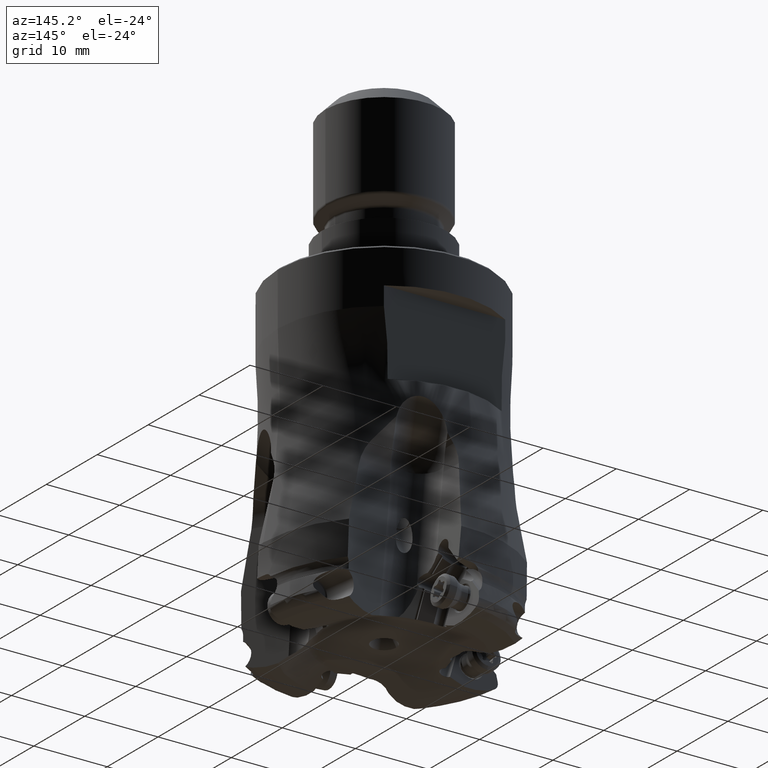
[diagram: clean part render]
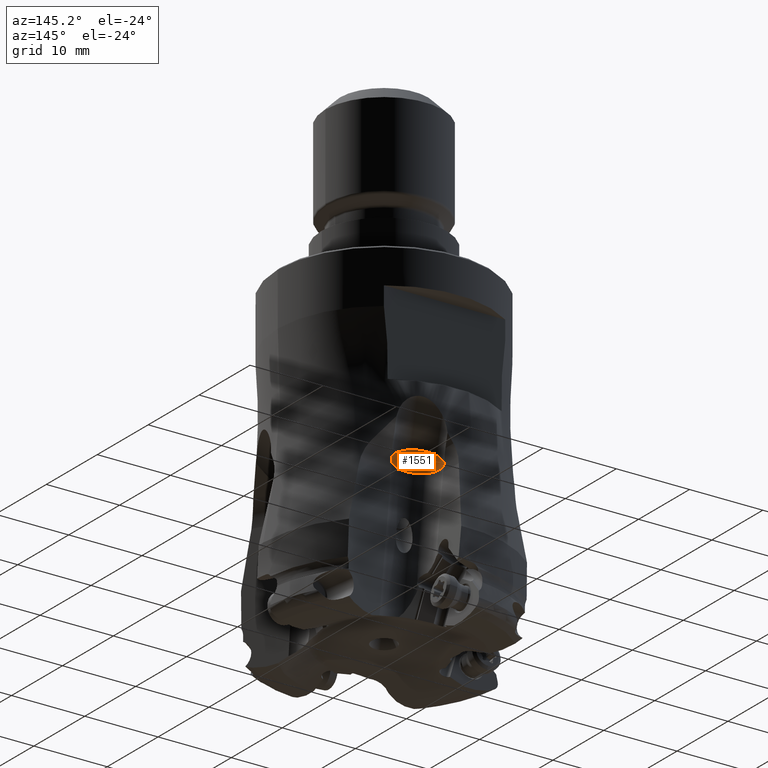
[diagram: same view with one face highlighted and labeled with its STEP entity id]
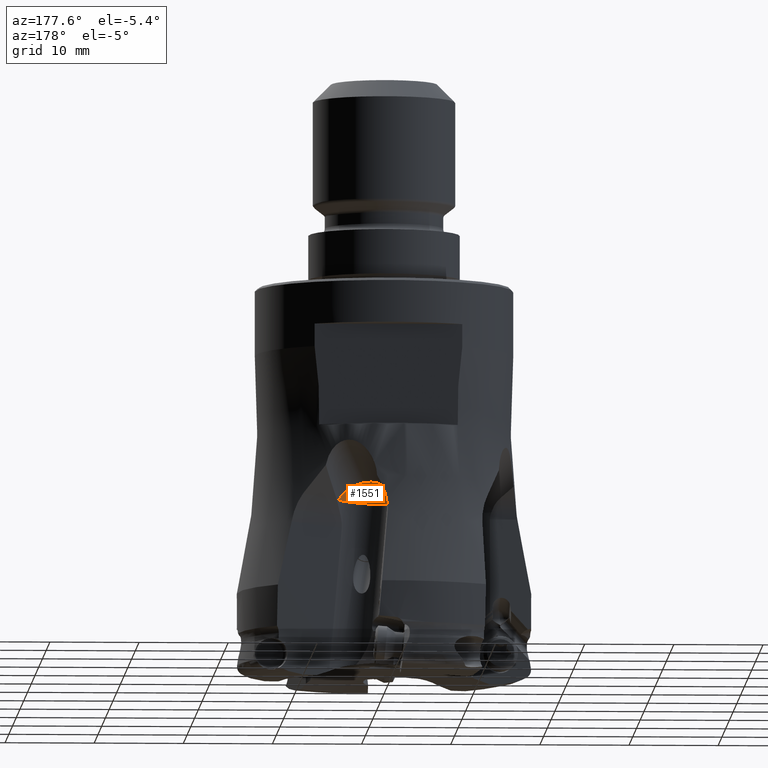
[diagram: same view with one face highlighted and labeled with its STEP entity id]
A machine part, auxiliary view. The second image highlights one B-rep face of the part: STEP entity #1551.
A second angle (auxiliary view) of the same face is appended — the face is thin or edge-on in the first view.
In plain terms, the highlighted spherical surface has radius 3 mm.
Its self-contained STEP definition (entity closure, byte-faithful):
#92=SPHERICAL_SURFACE('',#9758,3.);
#1551=ADVANCED_FACE('',(#2111),#92,.F.);
#2111=FACE_OUTER_BOUND('',#2620,.T.);
#2620=EDGE_LOOP('',(#4813,#4814,#4815,#4816,#4817));
#2907=CIRCLE('',#9303,3.);
#2908=CIRCLE('',#9304,3.);
#4813=ORIENTED_EDGE('',*,*,#7601,.F.);
#4814=ORIENTED_EDGE('',*,*,#7600,.F.);
#4815=ORIENTED_EDGE('',*,*,#7238,.F.);
#4816=ORIENTED_EDGE('',*,*,#7237,.F.);
#4817=ORIENTED_EDGE('',*,*,#7605,.F.);
#6281=VERTEX_POINT('',#13587);
#6282=VERTEX_POINT('',#13589);
#6283=VERTEX_POINT('',#13591);
#6557=VERTEX_POINT('',#16392);
#6558=VERTEX_POINT('',#16399);
#7237=EDGE_CURVE('',#6281,#6282,#2907,.T.);
#7238=EDGE_CURVE('',#6282,#6283,#2908,.T.);
#7600=EDGE_CURVE('',#6283,#6557,#8795,.T.);
#7601=EDGE_CURVE('',#6557,#6558,#8796,.T.);
#7605=EDGE_CURVE('',#6558,#6281,#8798,.T.);
#8795=B_SPLINE_CURVE_WITH_KNOTS('',3,(#16386,#16387,#16388,#16389,#16390,
#16391),.UNSPECIFIED.,.F.,.F.,(4,2,4),(0.,0.5,1.),.UNSPECIFIED.);
#8796=B_SPLINE_CURVE_WITH_KNOTS('',3,(#16393,#16394,#16395,#16396,#16397,
#16398),.UNSPECIFIED.,.F.,.F.,(4,2,4),(0.,0.5,1.),.UNSPECIFIED.);
#8798=B_SPLINE_CURVE_WITH_KNOTS('',3,(#16412,#16413,#16414,#16415),
 .UNSPECIFIED.,.F.,.F.,(4,4),(0.,1.),.UNSPECIFIED.);
#9303=AXIS2_PLACEMENT_3D('',#13588,#10420,#10421);
#9304=AXIS2_PLACEMENT_3D('',#13590,#10422,#10423);
#9758=AXIS2_PLACEMENT_3D('',#18574,#11508,#11509);
#10420=DIRECTION('',(-0.0871557427555858,9.01529545460557E-12,0.996194698091052));
#10421=DIRECTION('',(-0.904220558669679,0.41967480239889,-0.0791090482217237));
#10422=DIRECTION('',(-0.0871557427386529,-7.99901811454627E-13,0.996194698092533));
#10423=DIRECTION('',(-0.498097349046294,-0.866025403784388,-0.0435778713700243));
#11508=DIRECTION('',(-0.498097349044898,-0.866025403785196,-0.0435778713699098));
#11509=DIRECTION('',(0.0871557427457164,-3.28498802234141E-12,-0.996194698091915));
#13587=CARTESIAN_POINT('',(0.17647689444313,12.0345043452171,-25.0768270910319));
#13588=CARTESIAN_POINT('',(2.889138570455,10.77547993803,-24.83949994637));
#13589=CARTESIAN_POINT('',(1.394846523316,8.177403726677,-24.97023356048));
#13590=CARTESIAN_POINT('',(2.889138570455,10.77547993803,-24.83949994637));
#13591=CARTESIAN_POINT('',(5.477324964227,9.27548188049,-24.61306297845));
#16386=CARTESIAN_POINT('',(5.47731490457877,9.27548770786564,-24.6130638604484));
#16387=CARTESIAN_POINT('',(5.18252728685176,8.85673089528402,-24.0175905496407));
#16388=CARTESIAN_POINT('',(4.61061774901612,8.60221172067787,-23.4501872595196));
#16389=CARTESIAN_POINT('',(3.23547469283114,8.56535895598507,-22.6918961973988));
#16390=CARTESIAN_POINT('',(2.44070915577826,8.78325230121307,-22.5056778992423));
#16391=CARTESIAN_POINT('',(1.76312563319482,9.17595032328067,-22.5649594724375));
#16392=CARTESIAN_POINT('',(1.763125635148,9.175950327215,-22.5649594687));
#16393=CARTESIAN_POINT('',(1.76312563514885,9.17595032721607,-22.5649594687026));
#16394=CARTESIAN_POINT('',(1.12599068321557,9.54520611203856,-22.6207022089396));
#16395=CARTESIAN_POINT('',(0.598691333931091,10.0643300043743,-22.8918256153985));
#16396=CARTESIAN_POINT('',(0.0296154505864018,11.1405842622924,-23.7281398805313));
#16397=CARTESIAN_POINT('',(-0.00941218118124747,11.6925158171652,-24.2892909507199));
#16398=CARTESIAN_POINT('',(0.206908892120837,12.1191165111061,-24.8519765430924));
#16399=CARTESIAN_POINT('',(0.2068996795057,12.11912114192,-24.85197657397));
#16412=CARTESIAN_POINT('',(0.206899170636783,12.1191450516108,-24.8519845212003));
#16413=CARTESIAN_POINT('',(0.194528412389825,12.0937478155315,-24.927601426964));
#16414=CARTESIAN_POINT('',(0.184419472680009,12.0655804890975,-25.0027517211049));
#16415=CARTESIAN_POINT('',(0.17647689444313,12.0345043452171,-25.0768270910319));
#18574=CARTESIAN_POINT('',(2.889138570455,10.77547993803,-24.83949994637));